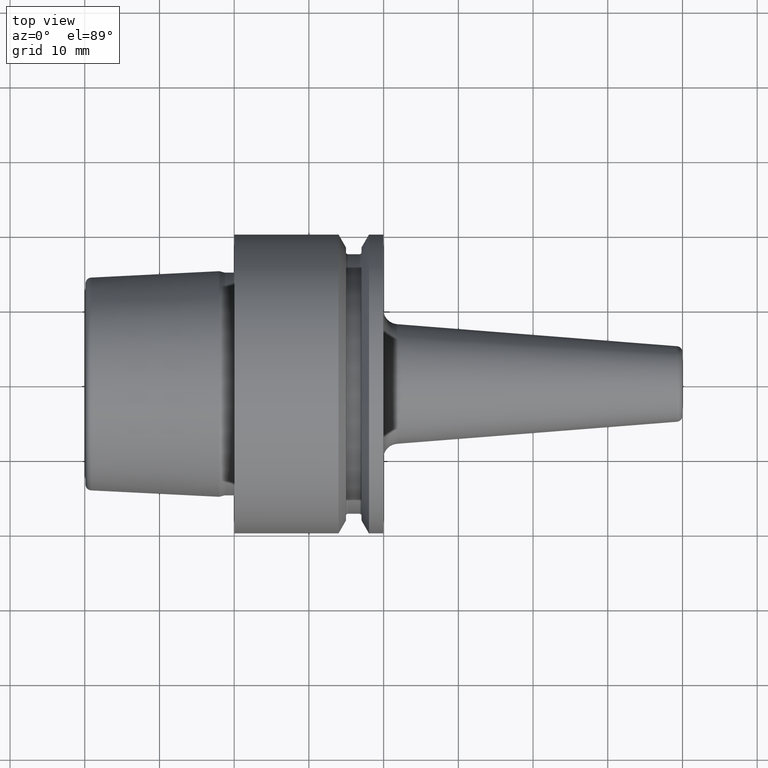
[diagram: clean part render]
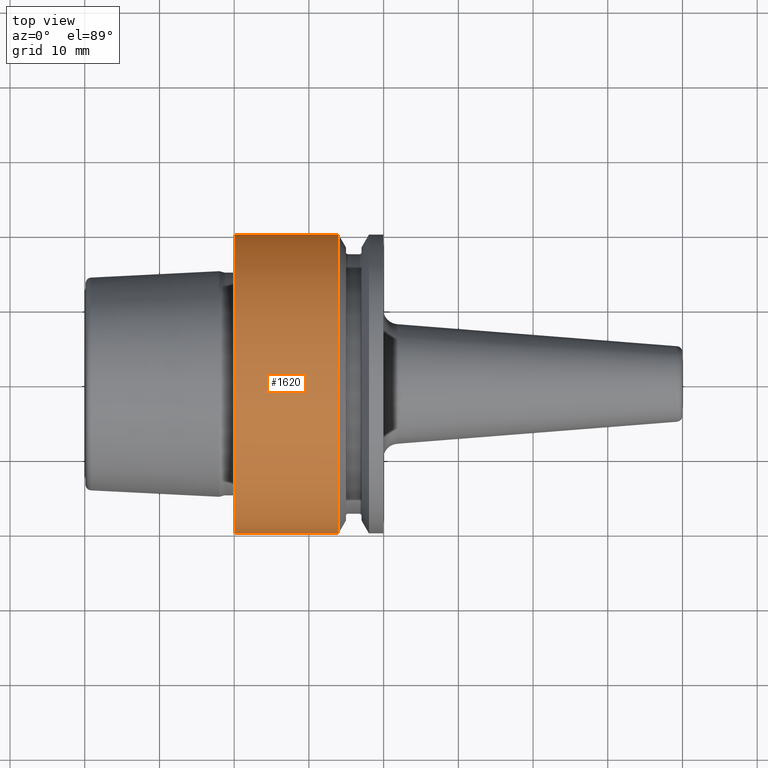
[diagram: same view with one face highlighted and labeled with its STEP entity id]
A machine part, top view. The second image highlights one B-rep face of the part: STEP entity #1620.
In plain terms, the highlighted cylindrical surface (partial cylindrical patch) has radius 20 mm, axis along (1, 0, 0).
Its self-contained STEP definition (entity closure, byte-faithful):
#452=CARTESIAN_POINT('',(-1.065814103640E-14,0.E0,0.E0));
#453=DIRECTION('',(1.E0,0.E0,0.E0));
#454=DIRECTION('',(0.E0,1.E0,0.E0));
#455=AXIS2_PLACEMENT_3D('',#452,#453,#454);
#482=CARTESIAN_POINT('',(1.396484030111E1,0.E0,0.E0));
#483=DIRECTION('',(1.E0,0.E0,0.E0));
#484=DIRECTION('',(0.E0,1.E0,0.E0));
#485=AXIS2_PLACEMENT_3D('',#482,#483,#484);
#614=DIRECTION('',(-1.E0,0.E0,0.E0));
#615=VECTOR('',#614,1.396484030111E1);
#616=CARTESIAN_POINT('',(1.396484030111E1,2.E1,0.E0));
#617=LINE('',#616,#615);
#618=DIRECTION('',(-1.E0,0.E0,0.E0));
#619=VECTOR('',#618,1.396484030111E1);
#620=CARTESIAN_POINT('',(1.396484030111E1,-2.E1,0.E0));
#621=LINE('',#620,#619);
#784=CARTESIAN_POINT('',(1.396484030111E1,2.E1,0.E0));
#785=VERTEX_POINT('',#784);
#788=CARTESIAN_POINT('',(1.396484030111E1,-2.E1,0.E0));
#789=VERTEX_POINT('',#788);
#794=CARTESIAN_POINT('',(-1.065814103640E-14,2.E1,0.E0));
#795=CARTESIAN_POINT('',(-1.065814103640E-14,-2.E1,0.E0));
#796=VERTEX_POINT('',#794);
#797=VERTEX_POINT('',#795);
#1606=CARTESIAN_POINT('',(-2.18925E1,0.E0,0.E0));
#1607=DIRECTION('',(1.E0,0.E0,0.E0));
#1608=DIRECTION('',(0.E0,-1.E0,0.E0));
#1609=AXIS2_PLACEMENT_3D('',#1606,#1607,#1608);
#1610=CYLINDRICAL_SURFACE('',#1609,2.E1);
#1612=ORIENTED_EDGE('',*,*,#1611,.T.);
#1614=ORIENTED_EDGE('',*,*,#1613,.T.);
#1615=ORIENTED_EDGE('',*,*,#1579,.F.);
#1617=ORIENTED_EDGE('',*,*,#1616,.F.);
#1618=EDGE_LOOP('',(#1612,#1614,#1615,#1617));
#1619=FACE_OUTER_BOUND('',#1618,.F.);
#1620=ADVANCED_FACE('',(#1619),#1610,.T.);
#456=CIRCLE('',#455,2.E1);
#486=CIRCLE('',#485,2.E1);
#1579=EDGE_CURVE('',#796,#797,#456,.T.);
#1611=EDGE_CURVE('',#785,#789,#486,.T.);
#1613=EDGE_CURVE('',#789,#797,#621,.T.);
#1616=EDGE_CURVE('',#785,#796,#617,.T.);